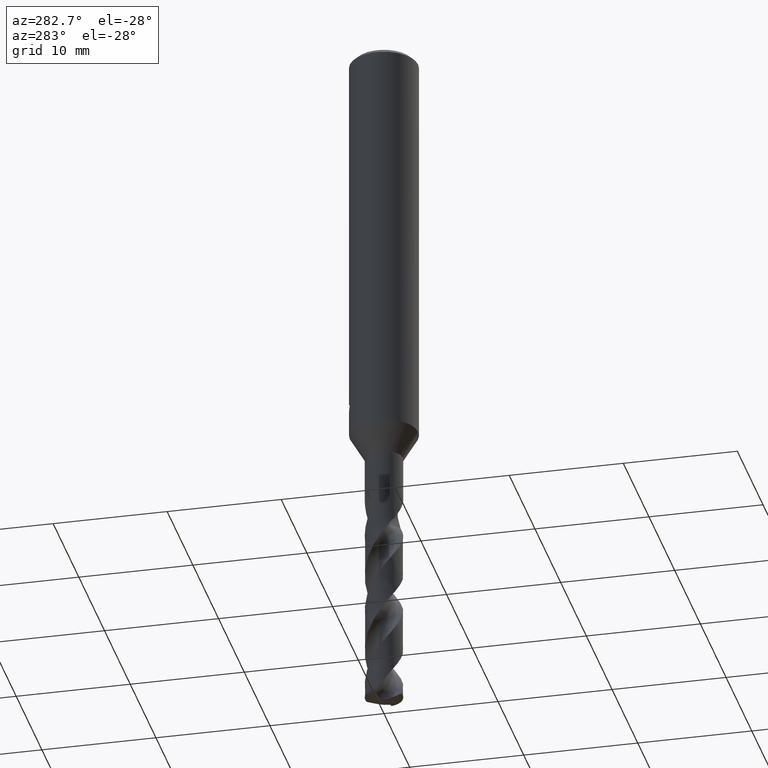
[diagram: clean part render]
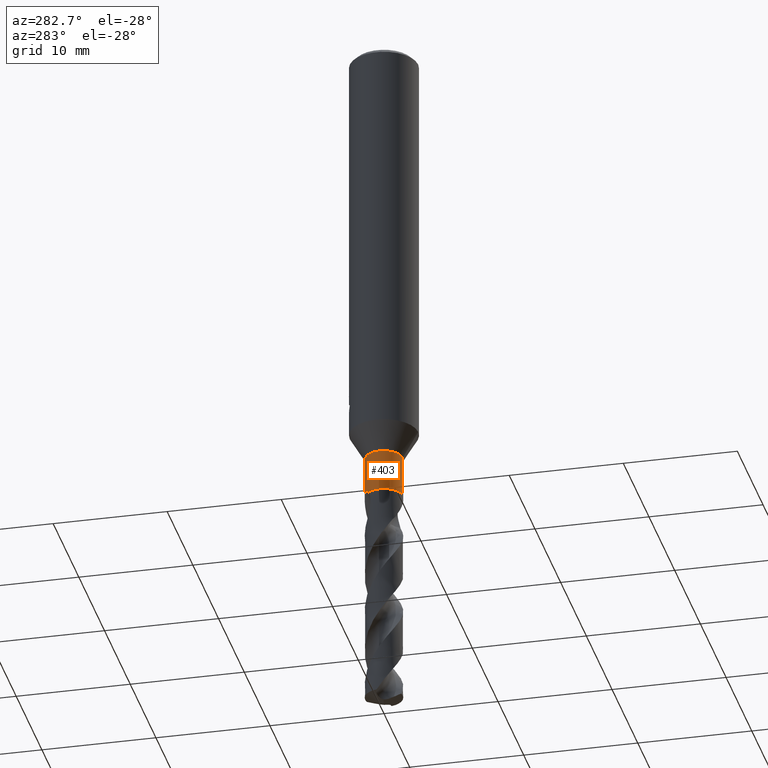
[diagram: same view with one face highlighted and labeled with its STEP entity id]
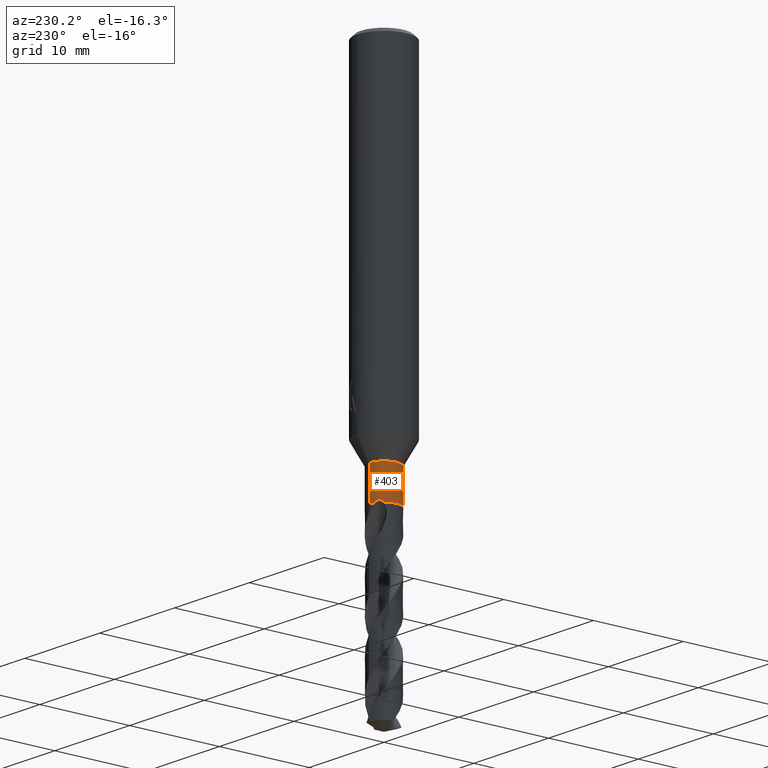
[diagram: same view with one face highlighted and labeled with its STEP entity id]
A machine part, auxiliary view. The second image highlights one B-rep face of the part: STEP entity #403.
A second angle (auxiliary view) of the same face is appended — the face is thin or edge-on in the first view.
In plain terms, the highlighted cylindrical surface (edge-blend (fillet) strip) has radius 1.65 mm, axis along (-0, -0, 1).
Its self-contained STEP definition (entity closure, byte-faithful):
#283=EDGE_CURVE('',#609,#487,#790,.T.);
#343=VERTEX_POINT('',#857);
#383=EDGE_CURVE('',#343,#743,#902,.T.);
#403=ADVANCED_FACE('',(#923),#924,.T.);
#481=VERTEX_POINT('',#1008);
#487=VERTEX_POINT('',#1015);
#509=EDGE_CURVE('',#343,#661,#1041,.T.);
#553=EDGE_CURVE('',#481,#661,#1093,.T.);
#609=VERTEX_POINT('',#1151);
#613=EDGE_CURVE('',#487,#481,#1155,.T.);
#655=EDGE_CURVE('',#609,#743,#1201,.T.);
#661=VERTEX_POINT('',#1208);
#743=VERTEX_POINT('',#1294);
#790=LINE('',#1340,#1341);
#857=CARTESIAN_POINT('',(-0.565503969192981,1.5500662117558,-42.0));
#902=B_SPLINE_CURVE_WITH_KNOTS('',3,(#2491,#2492,#2493,#2494,#2495,#2496,#2497,#2498,#2499,#2500,#2501,#2502),.UNSPECIFIED.,.F.,.F.,(4,2,2,2,2,4),(0.0,0.310151339307336,0.498938166452753,0.654403941603694,0.809554836044127,0.975756465941407),.UNSPECIFIED.);
#923=FACE_OUTER_BOUND('',#2643,.T.);
#924=CYLINDRICAL_SURFACE('',#2644,1.65);
#1008=CARTESIAN_POINT('',(0.0,1.65,-38.338268590218));
#1015=CARTESIAN_POINT('',(2.02060048380692E-016,-1.65,-38.338268590218));
#1041=CIRCLE('',#3524,1.65);
#1093=LINE('',#3954,#3955);
#1151=CARTESIAN_POINT('',(2.02060048380692E-016,-1.65,-42.0));
#1155=CIRCLE('',#4188,1.65);
#1201=CIRCLE('',#4377,1.65);
#1208=CARTESIAN_POINT('',(-2.02060048380692E-016,1.65,-42.0));
#1294=CARTESIAN_POINT('',(-1.2485920583575,1.07866485610989,-42.0));
#1340=CARTESIAN_POINT('',(2.02060048380692E-016,-1.65,-40.169134295109));
#1341=VECTOR('',#5217,1.0);
#2491=CARTESIAN_POINT('',(-0.565503969192987,1.5500662117558,-42.0));
#2492=CARTESIAN_POINT('',(-0.637137651964991,1.52393240429115,-41.9301870676789));
#2493=CARTESIAN_POINT('',(-0.71725727124793,1.48896937081203,-41.8648986627355));
#2494=CARTESIAN_POINT('',(-0.850633963308938,1.41500950287114,-41.7991017331733));
#2495=CARTESIAN_POINT('',(-0.902258223114459,1.38288342129389,-41.7832013076248));
#2496=CARTESIAN_POINT('',(-0.99563138231397,1.31677168194345,-41.7797719941791));
#2497=CARTESIAN_POINT('',(-1.0352763730275,1.28571572920402,-41.7878367423938));
#2498=CARTESIAN_POINT('',(-1.10908365807289,1.2226144059076,-41.822913220099));
#2499=CARTESIAN_POINT('',(-1.14152447534792,1.19208228884196,-41.8490532504175));
#2500=CARTESIAN_POINT('',(-1.20063476746647,1.13263240174327,-41.91534836299));
#2501=CARTESIAN_POINT('',(-1.22653788081966,1.10419333307044,-41.9561337447723));
#2502=CARTESIAN_POINT('',(-1.2485920583575,1.07866485610989,-42.0));
#2643=EDGE_LOOP('',(#5368,#5369,#5370,#5371,#5372,#5373));
#2644=AXIS2_PLACEMENT_3D('',#5374,#5375,#5376);
#3524=AXIS2_PLACEMENT_3D('',#5532,#5533,#5534);
#3954=CARTESIAN_POINT('',(-2.02060048380692E-016,1.65,-40.169134295109));
#3955=VECTOR('',#5616,1.0);
#4188=AXIS2_PLACEMENT_3D('',#5659,#5660,#5661);
#4377=AXIS2_PLACEMENT_3D('',#5710,#5711,#5712);
#5217=DIRECTION('',(-0.0,-0.0,1.0));
#5368=ORIENTED_EDGE('',*,*,#553,.T.);
#5369=ORIENTED_EDGE('',*,*,#509,.F.);
#5370=ORIENTED_EDGE('',*,*,#383,.T.);
#5371=ORIENTED_EDGE('',*,*,#655,.F.);
#5372=ORIENTED_EDGE('',*,*,#283,.T.);
#5373=ORIENTED_EDGE('',*,*,#613,.T.);
#5374=CARTESIAN_POINT('',(0.0,0.0,-40.169134295109));
#5375=DIRECTION('',(-0.0,-0.0,1.0));
#5376=DIRECTION('',(0.0,1.0,0.0));
#5532=CARTESIAN_POINT('',(0.0,0.0,-42.0));
#5533=DIRECTION('',(0.0,0.0,-1.0));
#5534=DIRECTION('',(0.0,1.0,0.0));
#5616=DIRECTION('',(0.0,0.0,-1.0));
#5659=CARTESIAN_POINT('',(0.0,0.0,-38.338268590218));
#5660=DIRECTION('',(0.0,0.0,-1.0));
#5661=DIRECTION('',(0.0,1.0,0.0));
#5710=CARTESIAN_POINT('',(0.0,0.0,-42.0));
#5711=DIRECTION('',(0.0,0.0,-1.0));
#5712=DIRECTION('',(0.0,1.0,0.0));